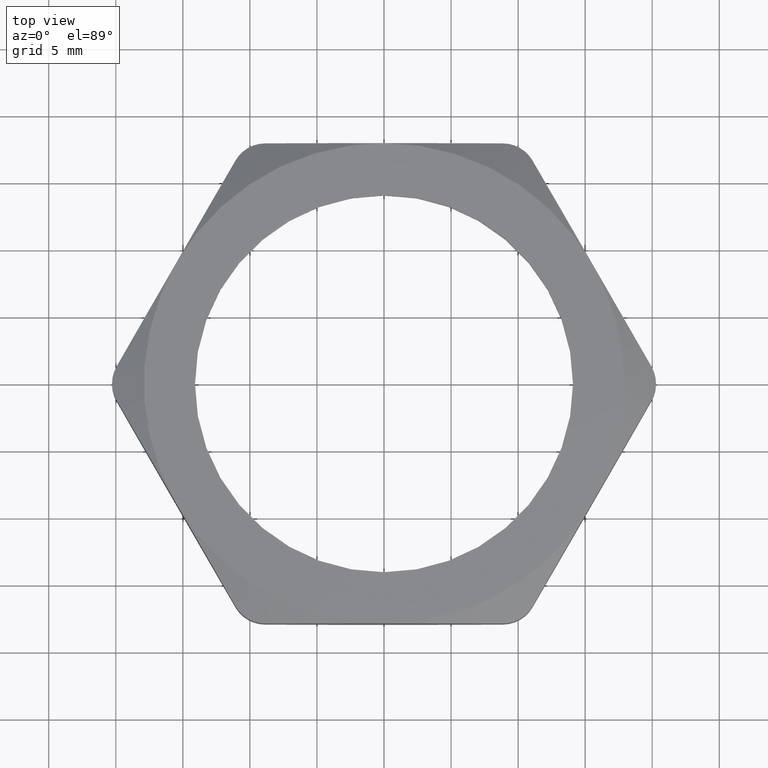
[diagram: clean part render]
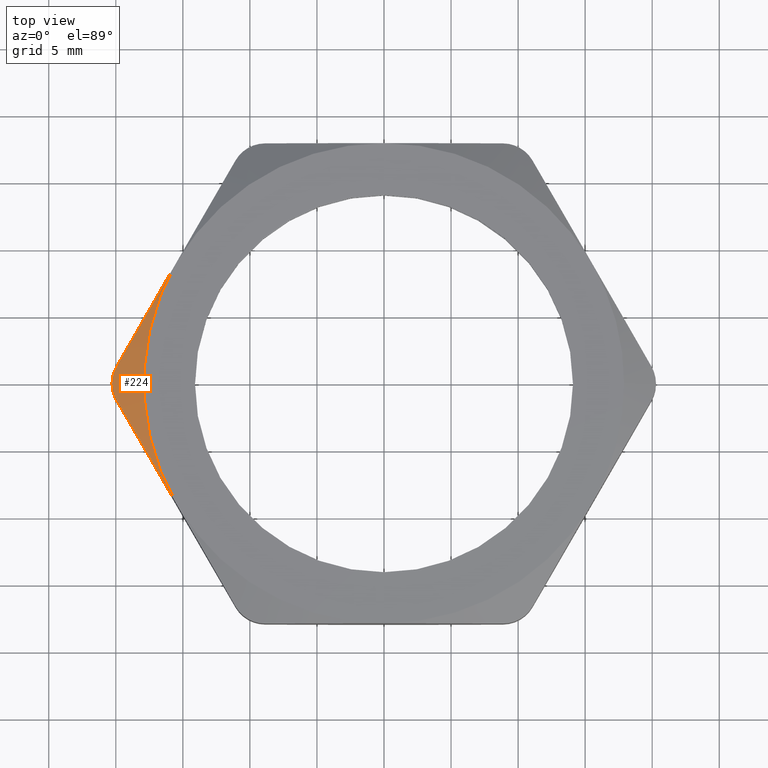
[diagram: same view with one face highlighted and labeled with its STEP entity id]
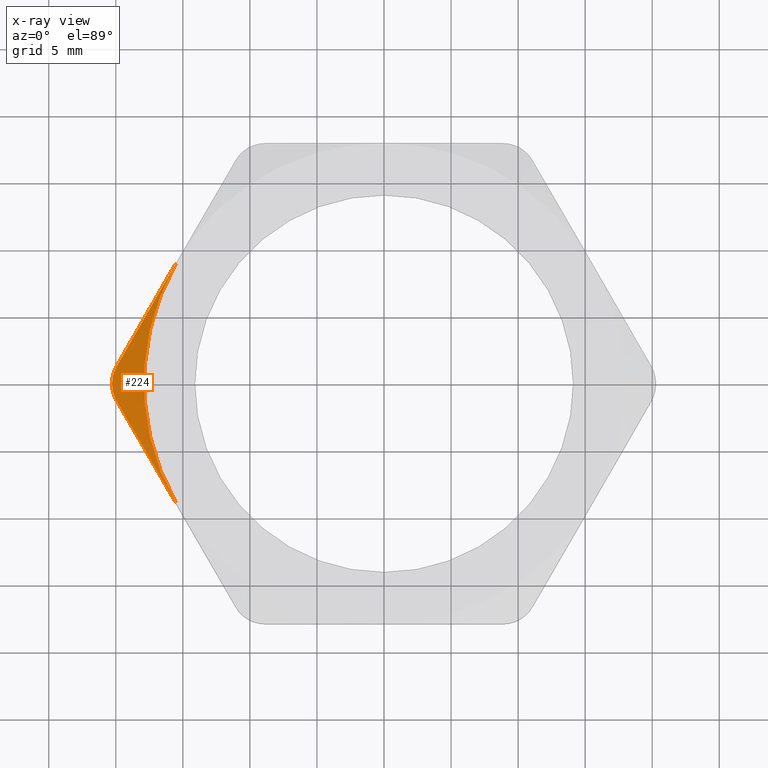
[diagram: x-ray of the same camera — body ghosted, the highlighted face saturated]
A machine part, top view. The second image highlights one B-rep face of the part: STEP entity #224.
The next image is the same camera in x-ray: the body ghosted, the highlighted face saturated — about 0% of this face is hidden behind the body in this view.
In plain terms, the highlighted conical surface has half-angle 60 deg.
Its self-contained STEP definition (entity closure, byte-faithful):
#112 = VERTEX_POINT ( 'NONE', #1106 ) ;
#114 = EDGE_CURVE ( 'NONE', #628, #112, #1097, .T. ) ;
#119 = VERTEX_POINT ( 'NONE', #1096 ) ;
#121 = EDGE_CURVE ( 'NONE', #122, #119, #1137, .T. ) ;
#122 = VERTEX_POINT ( 'NONE', #1136 ) ;
#176 = EDGE_CURVE ( 'NONE', #122, #112, #1274, .T. ) ;
#224 = ADVANCED_FACE ( 'NONE', ( #1403 ), #1402, .T. ) ;
#225 = EDGE_LOOP ( 'NONE', ( #226, #227, #229, #230, #231 ) ) ;
#226 = ORIENTED_EDGE ( 'NONE', *, *, #121, .T. ) ;
#227 = ORIENTED_EDGE ( 'NONE', *, *, #228, .T. ) ;
#228 = EDGE_CURVE ( 'NONE', #119, #627, #1427, .T. ) ;
#229 = ORIENTED_EDGE ( 'NONE', *, *, #626, .T. ) ;
#230 = ORIENTED_EDGE ( 'NONE', *, *, #114, .T. ) ;
#231 = ORIENTED_EDGE ( 'NONE', *, *, #176, .F. ) ;
#626 = EDGE_CURVE ( 'NONE', #627, #628, #2114, .T. ) ;
#627 = VERTEX_POINT ( 'NONE', #2113 ) ;
#628 = VERTEX_POINT ( 'NONE', #2115 ) ;
#1090 = CARTESIAN_POINT ( 'NONE',  ( -0.6105479096680297400, -0.3525000000000001500, 0.2700000000000000200 ) ) ;
#1091 = CARTESIAN_POINT ( 'NONE',  ( -0.6402212184296373100, -0.3011043215962164200, 0.2699999999999999100 ) ) ;
#1092 = CARTESIAN_POINT ( 'NONE',  ( -0.6695799666835330300, -0.2502534779738449500, 0.2656202652624304900 ) ) ;
#1093 = CARTESIAN_POINT ( 'NONE',  ( -0.7277564728907252000, -0.1494888134161416500, 0.2493284007340980700 ) ) ;
#1094 = CARTESIAN_POINT ( 'NONE',  ( -0.7565767812045943700, -0.09957057512672083700, 0.2374517804956083600 ) ) ;
#1095 = CARTESIAN_POINT ( 'NONE',  ( -0.7851963660978911200, -0.05000000000000007900, 0.2227804186536113700 ) ) ;
#1096 = CARTESIAN_POINT ( 'NONE',  ( -0.7851963660978700200, 0.05000000000003676500, 0.2227804186536222800 ) ) ;
#1097 = B_SPLINE_CURVE_WITH_KNOTS ( 'NONE', 3,
 ( #1095, #1094, #1093, #1092, #1091, #1090 ),
 .UNSPECIFIED., .F., .F.,
 ( 4, 2, 4 ),
 ( 0.001508684045643900300, 0.005984951571987022500, 0.01046121909833014300 ),
 .UNSPECIFIED. ) ;
#1106 = CARTESIAN_POINT ( 'NONE',  ( -0.6105479096680297400, -0.3525000000000001500, 0.2700000000000000200 ) ) ;
#1128 = CARTESIAN_POINT ( 'NONE',  ( -0.7851963660978700200, 0.05000000000003676500, 0.2227804186536222800 ) ) ;
#1129 = CARTESIAN_POINT ( 'NONE',  ( -0.7566400419166491300, 0.09946100435931888600, 0.2374193509268205900 ) ) ;
#1130 = CARTESIAN_POINT ( 'NONE',  ( -0.7278546754543513400, 0.1493187215865081900, 0.2492927808487105700 ) ) ;
#1131 = CARTESIAN_POINT ( 'NONE',  ( -0.6842147343087944300, 0.2249053168899272600, 0.2615259558775480700 ) ) ;
#1132 = CARTESIAN_POINT ( 'NONE',  ( -0.6695910815896561900, 0.2502342263917173800, 0.2646738990051400500 ) ) ;
#1133 = CARTESIAN_POINT ( 'NONE',  ( -0.6401734120383103500, 0.3011871246949210900, 0.2689127748557063000 ) ) ;
#1134 = CARTESIAN_POINT ( 'NONE',  ( -0.6253236485090139000, 0.3269076696080462900, 0.2700000000000000700 ) ) ;
#1135 = CARTESIAN_POINT ( 'NONE',  ( -0.6105479096680291900, 0.3525000000000000900, 0.2700000000000000200 ) ) ;
#1136 = CARTESIAN_POINT ( 'NONE',  ( -0.6105479096680291900, 0.3525000000000000900, 0.2700000000000000200 ) ) ;
#1137 = B_SPLINE_CURVE_WITH_KNOTS ( 'NONE', 3,
 ( #1135, #1134, #1133, #1132, #1131, #1130, #1129, #1128 ),
 .UNSPECIFIED., .F., .F.,
 ( 4, 2, 2, 4 ),
 ( 0.01046121909833013800, 0.01269016365193513500, 0.01491910820554013200, 0.01937699731275011700 ),
 .UNSPECIFIED. ) ;
#1268 = DIRECTION ( 'NONE',  ( 1.000000000000000000, 0.0000000000000000000, 0.0000000000000000000 ) ) ;
#1269 = DIRECTION ( 'NONE',  ( 0.0000000000000000000, 0.0000000000000000000, 1.000000000000000000 ) ) ;
#1270 = CARTESIAN_POINT ( 'NONE',  ( 0.0000000000000000000, 0.0000000000000000000, 0.2700000000000000200 ) ) ;
#1271 = AXIS2_PLACEMENT_3D ( 'NONE', #1270, #1269, #1268 ) ;
#1274 = CIRCLE ( 'NONE', #1271, 0.7049999999999999600 ) ;
#1377 = DIRECTION ( 'NONE',  ( 1.000000000000000000, 0.0000000000000000000, 0.0000000000000000000 ) ) ;
#1378 = DIRECTION ( 'NONE',  ( 0.0000000000000000000, 0.0000000000000000000, -1.000000000000000000 ) ) ;
#1379 = CARTESIAN_POINT ( 'NONE',  ( 0.0000000000000000000, 0.0000000000000000000, 0.2700000000000000200 ) ) ;
#1390 = AXIS2_PLACEMENT_3D ( 'NONE', #1379, #1378, #1377 ) ;
#1402 = CONICAL_SURFACE ( 'NONE', #1390, 0.7049999999999999600, 1.047197551196600100 ) ;
#1403 = FACE_OUTER_BOUND ( 'NONE', #225, .T. ) ;
#1421 = CARTESIAN_POINT ( 'NONE',  ( -0.7985938257194473700, -1.109813245846909900E-016, 0.2159635795263905000 ) ) ;
#1422 = CARTESIAN_POINT ( 'NONE',  ( -0.7985938257194473700, 0.008803445036563040800, 0.2159635795263905000 ) ) ;
#1423 = CARTESIAN_POINT ( 'NONE',  ( -0.7974185427648928800, 0.01762551082225319700, 0.2165560808353677600 ) ) ;
#1424 = CARTESIAN_POINT ( 'NONE',  ( -0.7928392944074323900, 0.03456551695895504500, 0.2188776787301303100 ) ) ;
#1425 = CARTESIAN_POINT ( 'NONE',  ( -0.7895112479769245100, 0.04252640535685536800, 0.2205684650707363000 ) ) ;
#1426 = CARTESIAN_POINT ( 'NONE',  ( -0.7851963660978700200, 0.05000000000003676500, 0.2227804186536222800 ) ) ;
#1427 = B_SPLINE_CURVE_WITH_KNOTS ( 'NONE', 3,
 ( #1426, #1425, #1424, #1423, #1422, #1421 ),
 .UNSPECIFIED., .F., .F.,
 ( 4, 2, 4 ),
 ( 1.354001402308008200E-016, 0.0006697591309709472200, 0.001339518261941758900 ),
 .UNSPECIFIED. ) ;
#2106 = CARTESIAN_POINT ( 'NONE',  ( -0.7851963660978911200, -0.05000000000000007900, 0.2227804186536113700 ) ) ;
#2107 = CARTESIAN_POINT ( 'NONE',  ( -0.7894987027707580700, -0.04254813429132865700, 0.2205748961651106100 ) ) ;
#2108 = CARTESIAN_POINT ( 'NONE',  ( -0.7928799069883262200, -0.03443349883441938100, 0.2188570708074461500 ) ) ;
#2109 = CARTESIAN_POINT ( 'NONE',  ( -0.7974065441632325300, -0.01765156187907618000, 0.2165621820914008500 ) ) ;
#2110 = CARTESIAN_POINT ( 'NONE',  ( -0.7985938257194471500, -0.008775293849290712400, 0.2159635795263905000 ) ) ;
#2111 = CARTESIAN_POINT ( 'NONE',  ( -0.7985938257194473700, -1.109813245846909900E-016, 0.2159635795263905000 ) ) ;
#2113 = CARTESIAN_POINT ( 'NONE',  ( -0.7985938257194473700, -1.109813245846909900E-016, 0.2159635795263905000 ) ) ;
#2114 = B_SPLINE_CURVE_WITH_KNOTS ( 'NONE', 3,
 ( #2111, #2110, #2109, #2108, #2107, #2106 ),
 .UNSPECIFIED., .F., .F.,
 ( 4, 2, 4 ),
 ( 0.001339518261941758900, 0.002007135672864890700, 0.002674753083788022700 ),
 .UNSPECIFIED. ) ;
#2115 = CARTESIAN_POINT ( 'NONE',  ( -0.7851963660978911200, -0.05000000000000007900, 0.2227804186536113700 ) ) ;